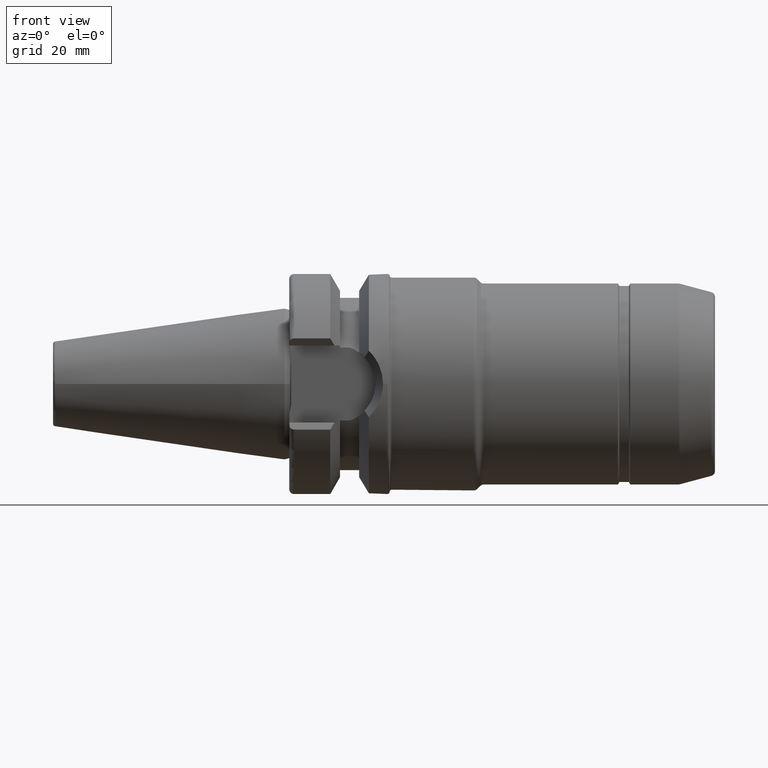
[diagram: clean part render]
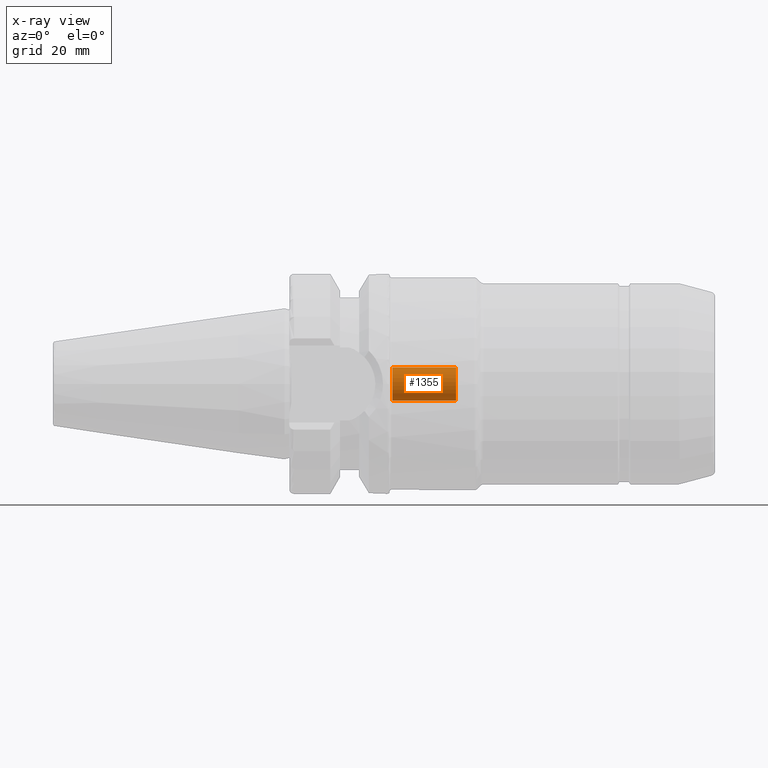
[diagram: x-ray — body ghosted, one internal face saturated and labeled with its STEP entity id]
A machine part, front view, then the same camera in x-ray: the body is ghosted and one INTERNAL B-rep face — a face not visible from any outside direction — is saturated and labeled: STEP entity #1355.
In plain terms, the highlighted cylindrical surface (bore or boss wall) has radius 3.4585 mm, axis along (1, 0, 0).
Its self-contained STEP definition (entity closure, byte-faithful):
#110=FACE_OUTER_BOUND('',#186,.T.);
#186=EDGE_LOOP('',(#891,#892,#893,#894,#895));
#268=LINE('',#2089,#338);
#338=VECTOR('',#1644,3.4585);
#408=CIRCLE('',#1452,3.4585);
#409=CIRCLE('',#1453,3.4585);
#410=CIRCLE('',#1454,3.4585);
#521=VERTEX_POINT('',#2086);
#522=VERTEX_POINT('',#2088);
#523=VERTEX_POINT('',#2090);
#671=EDGE_CURVE('',#521,#521,#408,.T.);
#672=EDGE_CURVE('',#521,#522,#268,.T.);
#673=EDGE_CURVE('',#523,#522,#409,.T.);
#674=EDGE_CURVE('',#522,#523,#410,.T.);
#891=ORIENTED_EDGE('',*,*,#671,.F.);
#892=ORIENTED_EDGE('',*,*,#672,.T.);
#893=ORIENTED_EDGE('',*,*,#673,.F.);
#894=ORIENTED_EDGE('',*,*,#674,.F.);
#895=ORIENTED_EDGE('',*,*,#672,.F.);
#1331=CYLINDRICAL_SURFACE('',#1451,3.4585);
#1355=ADVANCED_FACE('',(#110),#1331,.F.);
#1451=AXIS2_PLACEMENT_3D('',#2085,#1640,#1641);
#1452=AXIS2_PLACEMENT_3D('',#2087,#1642,#1643);
#1453=AXIS2_PLACEMENT_3D('',#2091,#1645,#1646);
#1454=AXIS2_PLACEMENT_3D('',#2092,#1647,#1648);
#1640=DIRECTION('center_axis',(1.,0.,0.));
#1641=DIRECTION('ref_axis',(0.,0.,-1.));
#1642=DIRECTION('center_axis',(-1.,0.,0.));
#1643=DIRECTION('ref_axis',(0.,0.,-1.));
#1644=DIRECTION('',(-1.,0.,0.));
#1645=DIRECTION('center_axis',(1.,0.,0.));
#1646=DIRECTION('ref_axis',(0.,0.,-1.));
#1647=DIRECTION('center_axis',(1.,0.,0.));
#1648=DIRECTION('ref_axis',(0.,0.,-1.));
#2085=CARTESIAN_POINT('Origin',(-113.932288120333,0.,0.));
#2086=CARTESIAN_POINT('',(35.8720521177139,4.23544095485112E-16,3.4585));
#2087=CARTESIAN_POINT('Origin',(35.8720521177139,0.,0.));
#2088=CARTESIAN_POINT('',(22.526226644231,-4.23544095485112E-16,3.4585));
#2089=CARTESIAN_POINT('',(-113.932288120333,-4.23544095485112E-16,3.4585));
#2090=CARTESIAN_POINT('',(22.526226644231,1.65822814643472E-15,-3.4585));
#2091=CARTESIAN_POINT('Origin',(22.526226644231,0.,0.));
#2092=CARTESIAN_POINT('Origin',(22.526226644231,0.,0.));